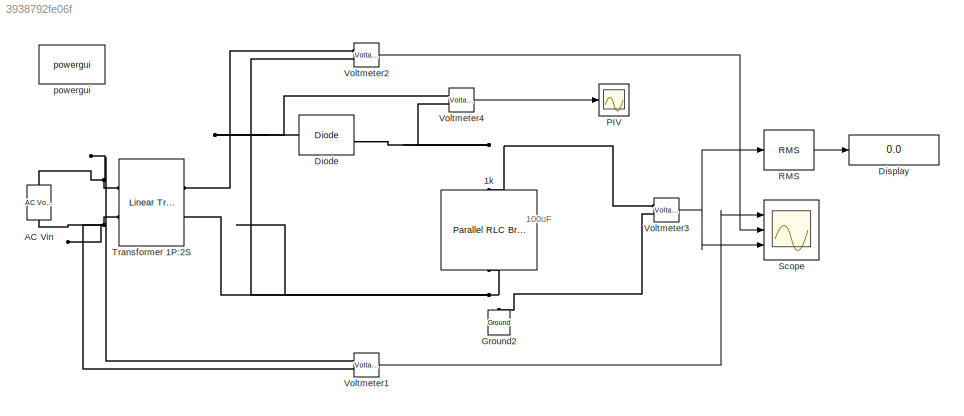
MODEL slx_3938792fe06f
KIND model
CONFIG AbsTol = auto
CONFIG FixedStep = auto
CONFIG MaxStep = auto
CONFIG MinStep = auto
CONFIG RelTol = 1e-3
CONFIG SampleTimeConstraint = Unconstrained
CONFIG Solver = ode45
CONFIG SolverMode = Auto
CONFIG SolverName = ode45
CONFIG StartTime = 0.0
CONFIG StopTime = 1
BLOCK [Reference]   1k  REF=powerlib/Elements/Parallel RLC Branch
  AttributesFormatString = \n
  BranchType = RC
  Capacitance = 100e-6
  Inductance = 1e-3
  InitialCurrent = 0
  InitialVoltage = 0
  LConnTagsString = a
  Measurements = None
  Ports = [0, 0, 0, 0, 0, 1, 1]
  RConnTagsString = __new0
  Resistance = 1000
  SetiL0 = off
  Setx0 = off
  SourceBlock = powerlib/Elements/Parallel RLC Branch
  SourceType = Parallel RLC Branch
BLOCK [Reference] AC Vin  REF=powerlib/Electrical
Sources/AC Voltage Source
  Amplitude = 220*sqrt(2)
  Frequency = 60
  Measurements = None
  Phase = 0
  Ports = [0, 0, 0, 0, 0, 1, 1]
  SampleTime = 0
  SourceBlock = powerlib/Electrical\nSources/AC Voltage Source
  SourceType = AC Voltage Source
BLOCK [Reference] Diode  REF=powerlib/Power
Electronics/Diode
  Cs = 250e-9
  IC = 0
  Lon = 0
  Measurements = on
  Ports = [0, 1, 0, 0, 0, 1, 1]
  Ron = 0.001
  Rs = 500
  SourceBlock = powerlib/Power\nElectronics/Diode
  SourceType = Diode
  UseSnubber = off
  Vf = 0.8
BLOCK [Display] Display
  Decimation = 1
  Ports = [1]
BLOCK [Reference] Ground2  REF=powerlib/Elements/Ground
  LConnTagsString = a
  Ports = [0, 0, 0, 0, 0, 1]
  SourceBlock = powerlib/Elements/Ground
  SourceType = Ground
BLOCK [Scope] PIV
  Floating = off
  NumInputPorts = 1
  Ports = [1]
  SaveName = ScopeData1
BLOCK [Reference] RMS  REF=powerlib_meascontrol/Measurements/RMS
  Freq = 60
  Ports = [1, 1]
  RMSInit = 120
  SourceBlock = powerlib_meascontrol/Measurements/RMS
  SourceType = RMS
  TrueRMS = on
  Ts = 0
BLOCK [Scope] Scope
  Floating = off
  NumInputPorts = 3
  Ports = [3]
  TimeRange = 0.04999000000000001
  YMax = 400~40~33.5
  YMin = -400~-40~28
  ZoomMode = yonly
BLOCK [Reference] Transformer 1P:2S  REF=powerlib/Elements/Linear Transformer
  DataType = on
  Measurements = None
  NominalPower = [ 250e6 60 ]
  Ports = [0, 0, 0, 0, 0, 2, 2]
  RmLm = [inf inf]
  SourceBlock = powerlib/Elements/Linear Transformer
  SourceType = Linear Transformer
  ThreeWindings = off
  UNITS = SI
  winding1 = [220 0 0]
  winding2 = [24 0 0]
  winding3 = [12 0 0]
BLOCK [Reference] Voltmeter1  REF=powerlib/Measurements/Voltage Measurement
  OutputType = Complex
  PSBequivalent = 0
  PhasorSimulation = off
  Ports = [0, 1, 0, 0, 0, 2]
  SourceBlock = powerlib/Measurements/Voltage Measurement
  SourceType = Voltage Measurement
  UserDataPersistent = on
BLOCK [Reference] Voltmeter2  REF=powerlib/Measurements/Voltage Measurement
  OutputType = Complex
  PSBequivalent = 0
  PhasorSimulation = off
  Ports = [0, 1, 0, 0, 0, 2]
  SourceBlock = powerlib/Measurements/Voltage Measurement
  SourceType = Voltage Measurement
  UserDataPersistent = on
BLOCK [Reference] Voltmeter3  REF=powerlib/Measurements/Voltage Measurement
  OutputType = Complex
  PSBequivalent = 0
  PhasorSimulation = off
  Ports = [0, 1, 0, 0, 0, 2]
  SourceBlock = powerlib/Measurements/Voltage Measurement
  SourceType = Voltage Measurement
  UserDataPersistent = on
BLOCK [Reference] Voltmeter4  REF=powerlib/Measurements/Voltage Measurement
  OutputType = Complex
  PSBequivalent = 0
  PhasorSimulation = off
  Ports = [0, 1, 0, 0, 0, 2]
  SourceBlock = powerlib/Measurements/Voltage Measurement
  SourceType = Voltage Measurement
  UserDataPersistent = on
BLOCK [Reference] powergui  REF=powerlib/powergui
  DisableRonSwitches = off
  DisableSnubberDevices = off
  DisableVfSwitches = off
  DisplayEquations = off
  DisplayStyle = 1
  EnableUseOfTLC = off
  ErrMax = 1e-4
  Frange = [0:2:500]
  FreqAxis = off
  FunctionMessages = off
  HookPort = off
  Interpol = off
  Iterations = 50
  MaxFrequency = 1000
  Pbase = 100e6
  Ports = []
  Priority = 1
  ResistiveCurrentMeasurement = off
  RestoreLinks = warning
  RmsSteady = 1
  SPID = off
  SampleTime = 10e-6
  ShowGrid = off
  SolverType = Tustin/Backward Euler (TBE)
  SourceBlock = powerlib/powergui
  SourceType = PSB option menu block
  StartTime = 0.0
  SwTol = 0
  Ts = 100
  UnitsV = kV
  UnitsW = MW
  UserDataPersistent = on
  Xlog = on
  Ylog = off
  ZoomFFT = off
  buscounter = 0
  cycles = 1
  display = off
  echomessages = off
  frequency = 60
  frequencyindice = 60
  frequencyindicesteady = 1
  fundamental = 60
  methode = off
  save = off
  structure = 0
  variable = ZData
  x0status = blocks
ANNOTATION (root): 100uF
LINE RMS:1 -> Display:1
LINE Voltmeter1:1 -> Scope:1
LINE Voltmeter2:1 -> Scope:2
NET Voltmeter3:1 -> RMS:1, Scope:3
LINE Voltmeter4:1 -> PIV:1
PNET net1:   1k:LConn1 -- Diode:RConn1 -- Voltmeter3:LConn1 -- Voltmeter4:LConn2
PNET net2:   1k:RConn1 -- Ground2:LConn1 -- Transformer 1P:2S:RConn2 -- Voltmeter2:LConn2 -- Voltmeter3:LConn2
PNET net3: AC Vin:LConn1 -- Transformer 1P:2S:LConn2 -- Voltmeter1:LConn2
PNET net4: AC Vin:RConn1 -- Transformer 1P:2S:LConn1 -- Voltmeter1:LConn1
PNET net5: Diode:LConn1 -- Transformer 1P:2S:RConn1 -- Voltmeter2:LConn1 -- Voltmeter4:LConn1
note: NET lines group one-source signal fan-out (src -> all destinations, sorted); 1:1 wires keep LINE; PNET lines group multi-terminal physical nets as a canonical sorted terminal list (undirected conserving connections); 2-terminal nets keep the pairwise PLINE form
